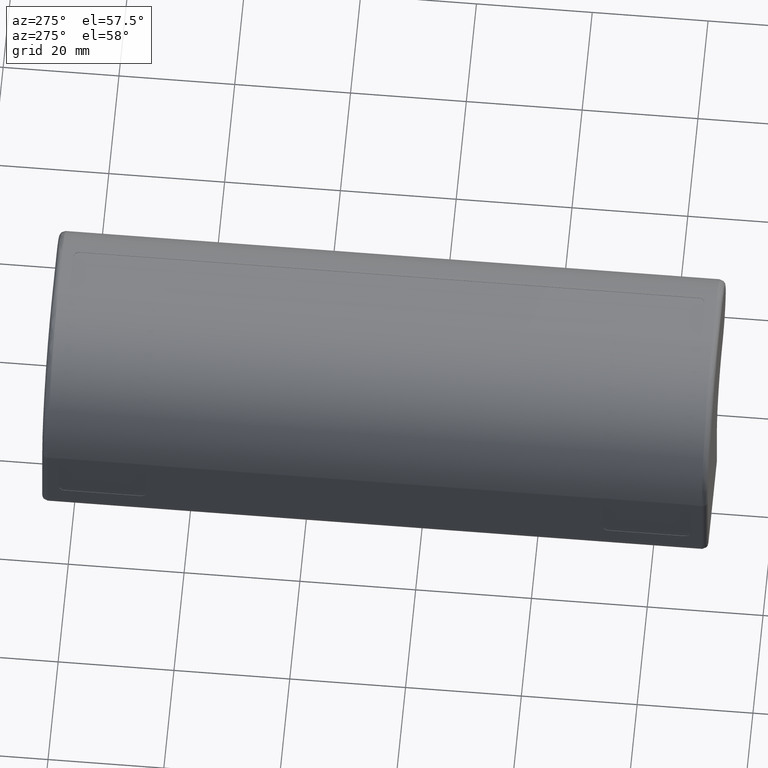
[diagram: clean part render]
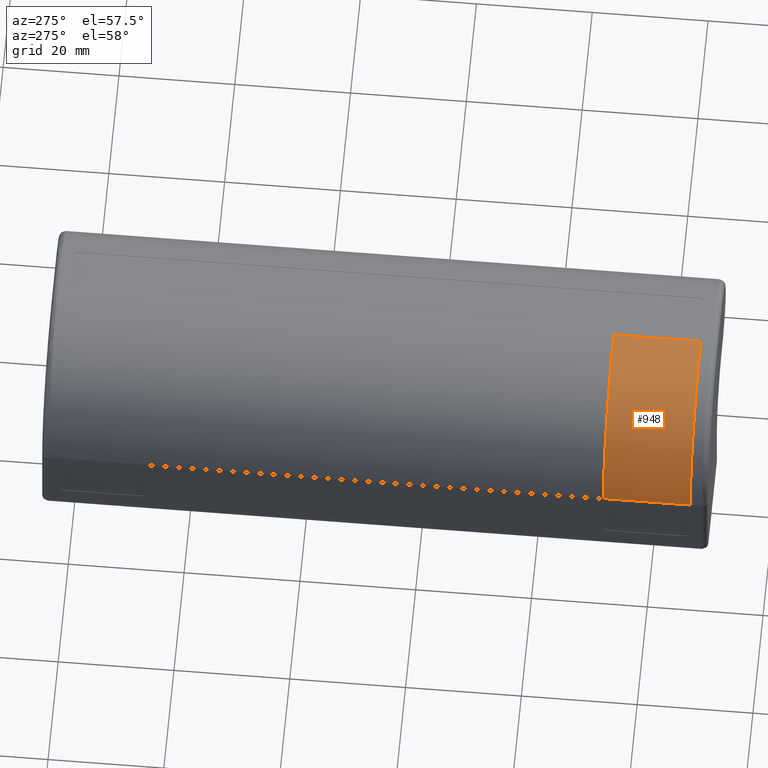
[diagram: same view with one face highlighted and labeled with its STEP entity id]
A machine part, auxiliary view. The second image highlights one B-rep face of the part: STEP entity #948.
In plain terms, the highlighted cylindrical surface (partial cylindrical patch) has radius 20.3122 mm, axis along (0, 1, 0).
Its self-contained STEP definition (entity closure, byte-faithful):
#76=FACE_OUTER_BOUND('',#134,.T.);
#134=EDGE_LOOP('',(#722,#723,#724,#725));
#182=LINE('',#1423,#259);
#223=LINE('',#1534,#300);
#259=VECTOR('',#1118,15.);
#300=VECTOR('',#1225,15.);
#337=CIRCLE('',#1000,20.3121814582042);
#350=CIRCLE('',#1025,20.3121814582042);
#400=VERTEX_POINT('',#1420);
#401=VERTEX_POINT('',#1422);
#410=VERTEX_POINT('',#1446);
#433=VERTEX_POINT('',#1507);
#488=EDGE_CURVE('',#400,#401,#182,.T.);
#501=EDGE_CURVE('',#400,#410,#337,.T.);
#542=EDGE_CURVE('',#433,#401,#350,.T.);
#545=EDGE_CURVE('',#410,#433,#223,.T.);
#722=ORIENTED_EDGE('',*,*,#501,.T.);
#723=ORIENTED_EDGE('',*,*,#545,.T.);
#724=ORIENTED_EDGE('',*,*,#542,.T.);
#725=ORIENTED_EDGE('',*,*,#488,.F.);
#911=CYLINDRICAL_SURFACE('',#1027,20.3121814582042);
#948=ADVANCED_FACE('',(#76),#911,.T.);
#1000=AXIS2_PLACEMENT_3D('',#1448,#1139,#1140);
#1025=AXIS2_PLACEMENT_3D('',#1529,#1217,#1218);
#1027=AXIS2_PLACEMENT_3D('',#1533,#1223,#1224);
#1118=DIRECTION('',(0.,1.,0.));
#1139=DIRECTION('center_axis',(0.,1.,0.));
#1140=DIRECTION('ref_axis',(-1.,0.,0.));
#1217=DIRECTION('center_axis',(0.,-1.,0.));
#1218=DIRECTION('ref_axis',(-1.,0.,0.));
#1223=DIRECTION('center_axis',(0.,1.,0.));
#1224=DIRECTION('ref_axis',(-1.,0.,0.));
#1225=DIRECTION('',(-1.8351862460956E-16,1.,0.));
#1420=CARTESIAN_POINT('',(-9.44994321904722,-6.49999999996179,15.1441380617745));
#1422=CARTESIAN_POINT('',(-9.44994321904722,8.50000000003821,15.1441380617745));
#1423=CARTESIAN_POINT('',(-9.44994321904722,-6.49999999996179,15.1441380617745));
#1446=CARTESIAN_POINT('',(11.0848844344493,-6.49999999996179,35.4550992468769));
#1448=CARTESIAN_POINT('Origin',(10.862238239157,-6.49999999996179,15.1441380617745));
#1507=CARTESIAN_POINT('',(11.0848844344493,8.50000000003821,35.4550992468769));
#1529=CARTESIAN_POINT('Origin',(10.862238239157,8.50000000003821,15.1441380617745));
#1533=CARTESIAN_POINT('Origin',(10.862238239157,-6.49999999996179,15.1441380617745));
#1534=CARTESIAN_POINT('',(11.0848844344493,-6.49999999996179,35.4550992468769));